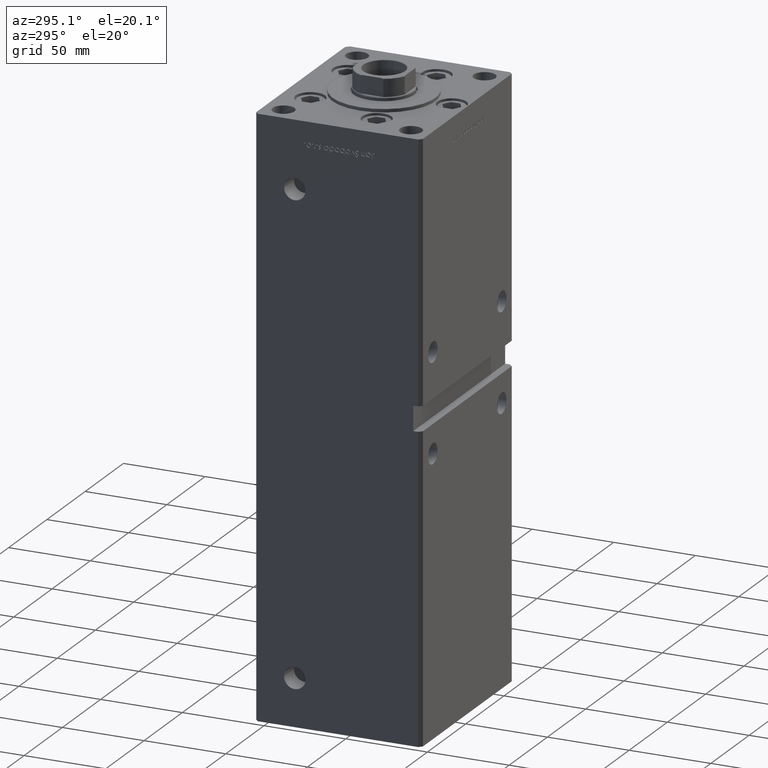
[diagram: clean part render]
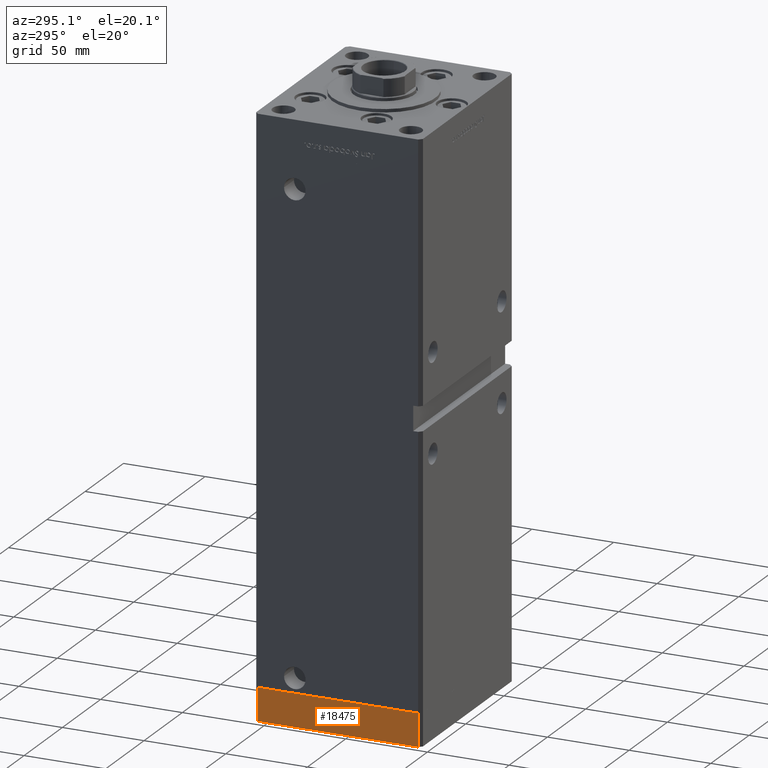
[diagram: same view with one face highlighted and labeled with its STEP entity id]
A machine part, auxiliary view. The second image highlights one B-rep face of the part: STEP entity #18475.
In plain terms, the highlighted planar face has unit normal (-1, -0, 0).
Its self-contained STEP definition (entity closure, byte-faithful):
#930 = CARTESIAN_POINT ( 'NONE',  ( 59.99999999999994316, 49.00000000000000000, -20.00000000000000000 ) ) ;
#2435 = ORIENTED_EDGE ( 'NONE', *, *, #12929, .F. ) ;
#4499 = ORIENTED_EDGE ( 'NONE', *, *, #46362, .T. ) ;
#4880 = CARTESIAN_POINT ( 'NONE',  ( 59.99999999999994316, 49.00000000000000000, -20.00000000000000000 ) ) ;
#6104 = CARTESIAN_POINT ( 'NONE',  ( 60.00000000000001421, -48.99999999999999289, -20.00000000000000000 ) ) ;
#6557 = VECTOR ( 'NONE', #21595, 1000.000000000000000 ) ;
#9561 = CARTESIAN_POINT ( 'NONE',  ( 59.99999999999994316, 49.00000000000000000, 0.000000000000000000 ) ) ;
#9860 = LINE ( 'NONE', #6104, #30819 ) ;
#10924 = VERTEX_POINT ( 'NONE', #27058 ) ;
#10931 = LINE ( 'NONE', #43727, #21330 ) ;
#11476 = DIRECTION ( 'NONE',  ( 0.000000000000000000, 0.000000000000000000, 1.000000000000000000 ) ) ;
#12807 = VECTOR ( 'NONE', #51839, 1000.000000000000000 ) ;
#12929 = EDGE_CURVE ( 'NONE', #37955, #10924, #10931, .T. ) ;
#14439 = EDGE_CURVE ( 'NONE', #37955, #32824, #9860, .T. ) ;
#15897 = EDGE_CURVE ( 'NONE', #10924, #46145, #50776, .T. ) ;
#16138 = CARTESIAN_POINT ( 'NONE',  ( 60.00000000000001421, -48.99999999999999289, -20.00000000000000000 ) ) ;
#16407 = EDGE_LOOP ( 'NONE', ( #42354, #2435, #37260, #4499 ) ) ;
#18205 = DIRECTION ( 'NONE',  ( -7.080503983578803823E-16, 1.000000000000000000, 0.000000000000000000 ) ) ;
#18475 = ADVANCED_FACE ( 'NONE', ( #42727 ), #33887, .T. ) ;
#18931 = AXIS2_PLACEMENT_3D ( 'NONE', #21523, #26618, #26349 ) ;
#21330 = VECTOR ( 'NONE', #11476, 1000.000000000000000 ) ;
#21523 = CARTESIAN_POINT ( 'NONE',  ( 60.00000000000001421, -48.99999999999999289, -20.00000000000000000 ) ) ;
#21595 = DIRECTION ( 'NONE',  ( 0.000000000000000000, 0.000000000000000000, 1.000000000000000000 ) ) ;
#26349 = DIRECTION ( 'NONE',  ( -7.080503983578804809E-16, 1.000000000000000000, 0.000000000000000000 ) ) ;
#26618 = DIRECTION ( 'NONE',  ( 1.000000000000000000, 7.080503983578804809E-16, -0.000000000000000000 ) ) ;
#27058 = CARTESIAN_POINT ( 'NONE',  ( 60.00000000000001421, -48.99999999999999289, 0.000000000000000000 ) ) ;
#30819 = VECTOR ( 'NONE', #18205, 1000.000000000000000 ) ;
#32824 = VERTEX_POINT ( 'NONE', #4880 ) ;
#33887 = PLANE ( 'NONE',  #18931 ) ;
#35472 = CARTESIAN_POINT ( 'NONE',  ( 60.00000000000001421, -48.99999999999999289, 0.000000000000000000 ) ) ;
#37260 = ORIENTED_EDGE ( 'NONE', *, *, #14439, .T. ) ;
#37955 = VERTEX_POINT ( 'NONE', #16138 ) ;
#42354 = ORIENTED_EDGE ( 'NONE', *, *, #15897, .F. ) ;
#42727 = FACE_OUTER_BOUND ( 'NONE', #16407, .T. ) ;
#43727 = CARTESIAN_POINT ( 'NONE',  ( 60.00000000000001421, -48.99999999999999289, -20.00000000000000000 ) ) ;
#46145 = VERTEX_POINT ( 'NONE', #9561 ) ;
#46362 = EDGE_CURVE ( 'NONE', #32824, #46145, #50061, .T. ) ;
#50061 = LINE ( 'NONE', #930, #6557 ) ;
#50776 = LINE ( 'NONE', #35472, #12807 ) ;
#51839 = DIRECTION ( 'NONE',  ( -7.080503983578803823E-16, 1.000000000000000000, 0.000000000000000000 ) ) ;